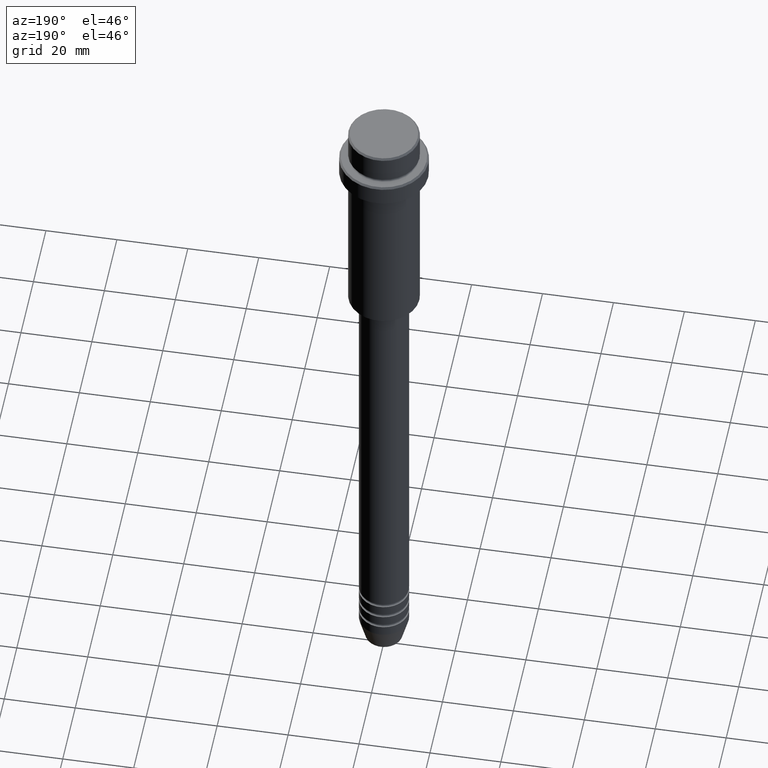
[diagram: clean part render]
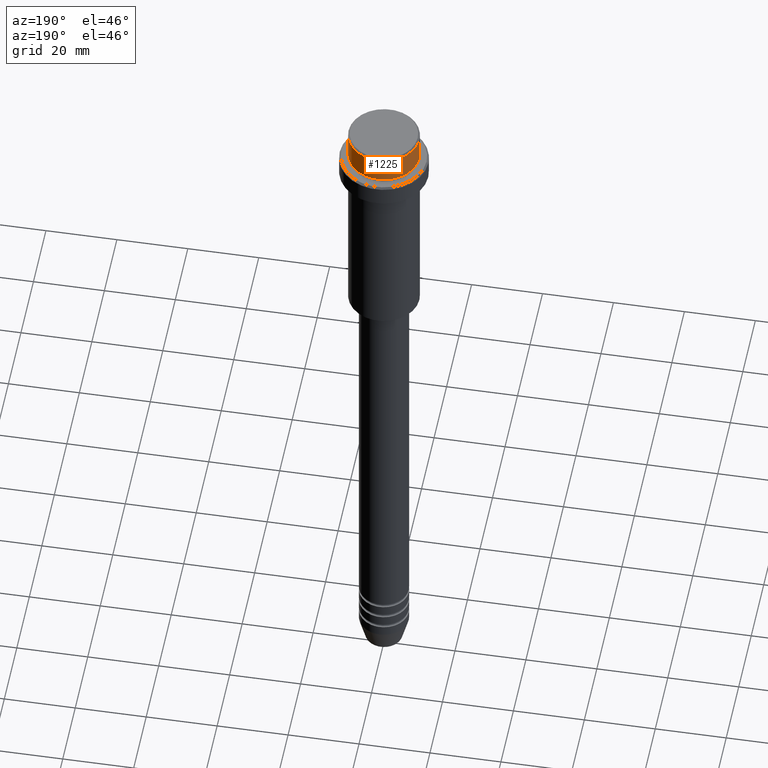
[diagram: same view with one face highlighted and labeled with its STEP entity id]
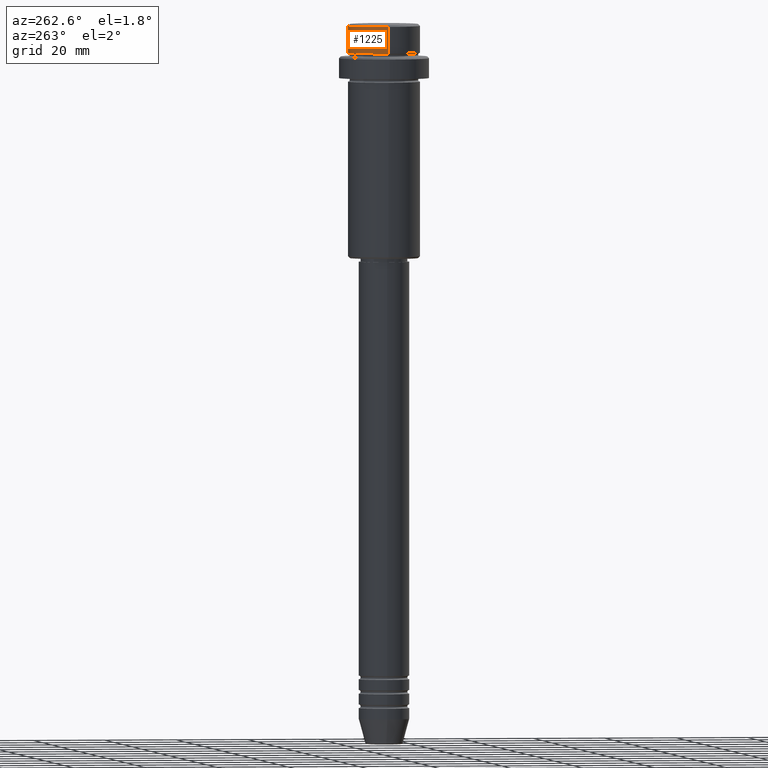
[diagram: same view with one face highlighted and labeled with its STEP entity id]
A machine part, auxiliary view. The second image highlights one B-rep face of the part: STEP entity #1225.
A second angle (auxiliary view) of the same face is appended — the face is thin or edge-on in the first view.
In plain terms, the highlighted cylindrical surface (edge-blend (fillet) strip) has radius 10 mm, axis along (-0, -0, 1).
Its self-contained STEP definition (entity closure, byte-faithful):
#21 = VECTOR ( 'NONE', #953, 1000.000000000000000 ) ;
#52 = CARTESIAN_POINT ( 'NONE',  ( -9.999999999999998224, 1.224646799147353059E-15, -7.999999999999998224 ) ) ;
#55 = DIRECTION ( 'NONE',  ( 1.000000000000000000, 0.000000000000000000, 0.000000000000000000 ) ) ;
#65 = DIRECTION ( 'NONE',  ( 0.000000000000000000, 0.000000000000000000, -1.000000000000000000 ) ) ;
#66 = AXIS2_PLACEMENT_3D ( 'NONE', #164, #1048, #55 ) ;
#75 = EDGE_CURVE ( 'NONE', #605, #1319, #780, .T. ) ;
#76 = DIRECTION ( 'NONE',  ( -0.000000000000000000, -0.000000000000000000, 1.000000000000000000 ) ) ;
#164 = CARTESIAN_POINT ( 'NONE',  ( 0.000000000000000000, 0.000000000000000000, -7.999999999999998224 ) ) ;
#240 = EDGE_LOOP ( 'NONE', ( #261, #1374, #723, #492 ) ) ;
#261 = ORIENTED_EDGE ( 'NONE', *, *, #1031, .T. ) ;
#266 = CARTESIAN_POINT ( 'NONE',  ( 9.999999999999998224, 0.000000000000000000, 0.000000000000000000 ) ) ;
#285 = CARTESIAN_POINT ( 'NONE',  ( -9.999999999999998224, 1.224646799147353059E-15, 0.000000000000000000 ) ) ;
#339 = VERTEX_POINT ( 'NONE', #52 ) ;
#381 = LINE ( 'NONE', #266, #392 ) ;
#392 = VECTOR ( 'NONE', #76, 1000.000000000000000 ) ;
#482 = AXIS2_PLACEMENT_3D ( 'NONE', #1330, #1220, #587 ) ;
#492 = ORIENTED_EDGE ( 'NONE', *, *, #1312, .F. ) ;
#506 = DIRECTION ( 'NONE',  ( 1.000000000000000000, 0.000000000000000000, 0.000000000000000000 ) ) ;
#556 = CARTESIAN_POINT ( 'NONE',  ( -9.999999999999998224, 1.224646799147353059E-15, -0.4999999999999970024 ) ) ;
#587 = DIRECTION ( 'NONE',  ( 1.000000000000000000, 0.000000000000000000, 0.000000000000000000 ) ) ;
#605 = VERTEX_POINT ( 'NONE', #556 ) ;
#667 = AXIS2_PLACEMENT_3D ( 'NONE', #971, #65, #506 ) ;
#687 = CIRCLE ( 'NONE', #66, 9.999999999999998224 ) ;
#723 = ORIENTED_EDGE ( 'NONE', *, *, #75, .T. ) ;
#780 = CIRCLE ( 'NONE', #667, 9.999999999999998224 ) ;
#898 = FACE_OUTER_BOUND ( 'NONE', #240, .T. ) ;
#909 = EDGE_CURVE ( 'NONE', #339, #605, #1365, .T. ) ;
#953 = DIRECTION ( 'NONE',  ( -0.000000000000000000, -0.000000000000000000, 1.000000000000000000 ) ) ;
#971 = CARTESIAN_POINT ( 'NONE',  ( 0.000000000000000000, 0.000000000000000000, -0.4999999999999970024 ) ) ;
#1026 = VERTEX_POINT ( 'NONE', #1149 ) ;
#1031 = EDGE_CURVE ( 'NONE', #1026, #339, #687, .T. ) ;
#1039 = CARTESIAN_POINT ( 'NONE',  ( 9.999999999999998224, 0.000000000000000000, -0.4999999999999970024 ) ) ;
#1048 = DIRECTION ( 'NONE',  ( -0.000000000000000000, -0.000000000000000000, 1.000000000000000000 ) ) ;
#1127 = CYLINDRICAL_SURFACE ( 'NONE', #482, 9.999999999999998224 ) ;
#1149 = CARTESIAN_POINT ( 'NONE',  ( 9.999999999999998224, 0.000000000000000000, -7.999999999999998224 ) ) ;
#1220 = DIRECTION ( 'NONE',  ( -0.000000000000000000, -0.000000000000000000, 1.000000000000000000 ) ) ;
#1225 = ADVANCED_FACE ( 'NONE', ( #898 ), #1127, .T. ) ;
#1312 = EDGE_CURVE ( 'NONE', #1026, #1319, #381, .T. ) ;
#1319 = VERTEX_POINT ( 'NONE', #1039 ) ;
#1330 = CARTESIAN_POINT ( 'NONE',  ( 0.000000000000000000, 0.000000000000000000, 0.000000000000000000 ) ) ;
#1365 = LINE ( 'NONE', #285, #21 ) ;
#1374 = ORIENTED_EDGE ( 'NONE', *, *, #909, .T. ) ;